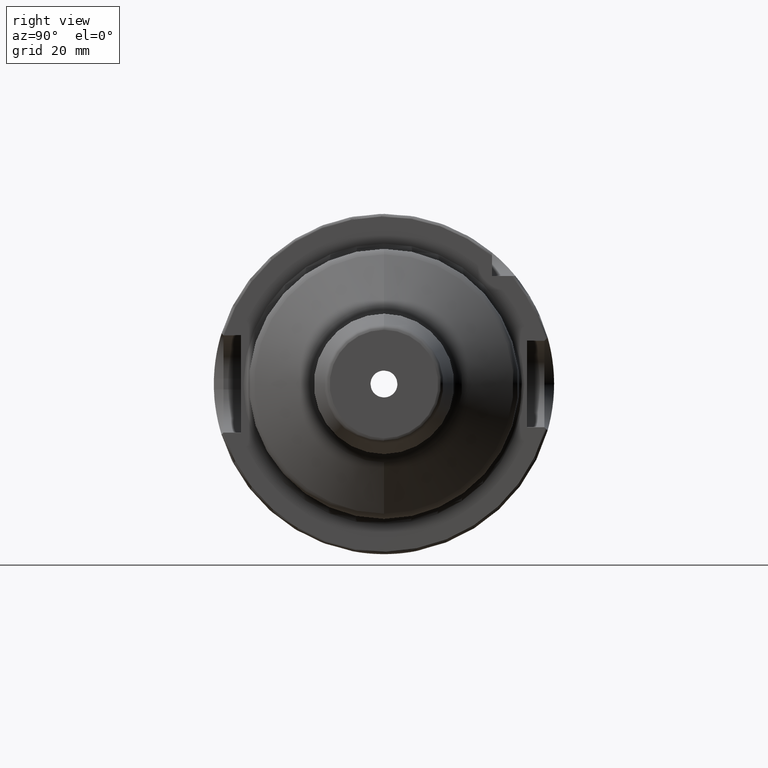
[diagram: clean part render]
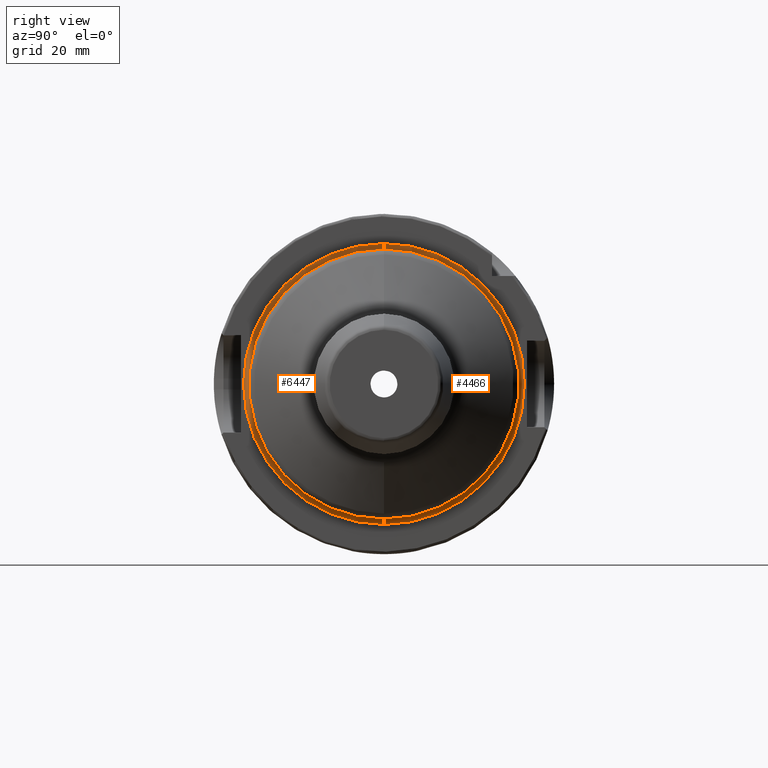
[diagram: same view with one multi-face feature highlighted, each face labeled with its STEP entity id]
A machine part, right view. The highlighted faces form ONE feature: a constant-radius fillet chain: 2 tangent blend faces with common blend radius 1 mm. The faces share edges in the B-rep.
Their STEP definitions:
[1] entity #6447 (Torus):
#1004=CARTESIAN_POINT('',(2.6E1,0.E0,0.E0));
#1005=DIRECTION('',(1.E0,0.E0,0.E0));
#1006=DIRECTION('',(0.E0,0.E0,1.E0));
#1007=AXIS2_PLACEMENT_3D('',#1004,#1005,#1006);
#2684=CARTESIAN_POINT('',(2.7E1,0.E0,2.6E1));
#2685=DIRECTION('',(0.E0,1.E0,0.E0));
#2686=DIRECTION('',(0.E0,0.E0,-1.E0));
#2687=AXIS2_PLACEMENT_3D('',#2684,#2685,#2686);
#2689=CARTESIAN_POINT('',(2.7E1,0.E0,0.E0));
#2690=DIRECTION('',(-1.E0,0.E0,0.E0));
#2691=DIRECTION('',(0.E0,0.E0,-1.E0));
#2692=AXIS2_PLACEMENT_3D('',#2689,#2690,#2691);
#2694=CARTESIAN_POINT('',(2.7E1,0.E0,-2.6E1));
#2695=DIRECTION('',(0.E0,-1.E0,0.E0));
#2696=DIRECTION('',(0.E0,0.E0,1.E0));
#2697=AXIS2_PLACEMENT_3D('',#2694,#2695,#2696);
#3190=CARTESIAN_POINT('',(2.7E1,0.E0,-2.5E1));
#3191=VERTEX_POINT('',#3190);
#3248=CARTESIAN_POINT('',(2.7E1,0.E0,2.5E1));
#3249=VERTEX_POINT('',#3248);
#3258=CARTESIAN_POINT('',(2.6E1,0.E0,-2.6E1));
#3259=CARTESIAN_POINT('',(2.6E1,0.E0,2.6E1));
#3260=VERTEX_POINT('',#3258);
#3261=VERTEX_POINT('',#3259);
#6436=CARTESIAN_POINT('',(2.7E1,0.E0,0.E0));
#6437=DIRECTION('',(1.E0,0.E0,0.E0));
#6438=DIRECTION('',(0.E0,0.E0,1.E0));
#6439=AXIS2_PLACEMENT_3D('',#6436,#6437,#6438);
#6440=TOROIDAL_SURFACE('',#6439,2.6E1,1.E0);
#6441=ORIENTED_EDGE('',*,*,#4501,.F.);
#6442=ORIENTED_EDGE('',*,*,#4462,.F.);
#6443=ORIENTED_EDGE('',*,*,#4431,.F.);
#6444=ORIENTED_EDGE('',*,*,#4459,.T.);
#6445=EDGE_LOOP('',(#6441,#6442,#6443,#6444));
#6446=FACE_OUTER_BOUND('',#6445,.F.);
#6447=ADVANCED_FACE('',(#6446),#6440,.F.);
#1008=CIRCLE('',#1007,2.6E1);
#2688=CIRCLE('',#2687,1.E0);
#2693=CIRCLE('',#2692,2.5E1);
#2698=CIRCLE('',#2697,1.E0);
#4431=EDGE_CURVE('',#3191,#3249,#2693,.T.);
#4459=EDGE_CURVE('',#3191,#3260,#2698,.T.);
#4462=EDGE_CURVE('',#3249,#3261,#2688,.T.);
#4501=EDGE_CURVE('',#3261,#3260,#1008,.T.);
[2] entity #4466 (Torus):
#954=CARTESIAN_POINT('',(2.7E1,0.E0,0.E0));
#955=DIRECTION('',(1.E0,0.E0,0.E0));
#956=DIRECTION('',(0.E0,0.E0,-1.E0));
#957=AXIS2_PLACEMENT_3D('',#954,#955,#956);
#999=CARTESIAN_POINT('',(2.6E1,0.E0,0.E0));
#1000=DIRECTION('',(1.E0,0.E0,0.E0));
#1001=DIRECTION('',(0.E0,0.E0,-1.E0));
#1002=AXIS2_PLACEMENT_3D('',#999,#1000,#1001);
#2684=CARTESIAN_POINT('',(2.7E1,0.E0,2.6E1));
#2685=DIRECTION('',(0.E0,1.E0,0.E0));
#2686=DIRECTION('',(0.E0,0.E0,-1.E0));
#2687=AXIS2_PLACEMENT_3D('',#2684,#2685,#2686);
#2694=CARTESIAN_POINT('',(2.7E1,0.E0,-2.6E1));
#2695=DIRECTION('',(0.E0,-1.E0,0.E0));
#2696=DIRECTION('',(0.E0,0.E0,1.E0));
#2697=AXIS2_PLACEMENT_3D('',#2694,#2695,#2696);
#3190=CARTESIAN_POINT('',(2.7E1,0.E0,-2.5E1));
#3191=VERTEX_POINT('',#3190);
#3248=CARTESIAN_POINT('',(2.7E1,0.E0,2.5E1));
#3249=VERTEX_POINT('',#3248);
#3258=CARTESIAN_POINT('',(2.6E1,0.E0,-2.6E1));
#3259=CARTESIAN_POINT('',(2.6E1,0.E0,2.6E1));
#3260=VERTEX_POINT('',#3258);
#3261=VERTEX_POINT('',#3259);
#4452=CARTESIAN_POINT('',(2.7E1,0.E0,0.E0));
#4453=DIRECTION('',(1.E0,0.E0,0.E0));
#4454=DIRECTION('',(0.E0,0.E0,1.E0));
#4455=AXIS2_PLACEMENT_3D('',#4452,#4453,#4454);
#4456=TOROIDAL_SURFACE('',#4455,2.6E1,1.E0);
#4458=ORIENTED_EDGE('',*,*,#4457,.F.);
#4460=ORIENTED_EDGE('',*,*,#4459,.F.);
#4461=ORIENTED_EDGE('',*,*,#4447,.T.);
#4463=ORIENTED_EDGE('',*,*,#4462,.T.);
#4464=EDGE_LOOP('',(#4458,#4460,#4461,#4463));
#4465=FACE_OUTER_BOUND('',#4464,.F.);
#4466=ADVANCED_FACE('',(#4465),#4456,.F.);
#958=CIRCLE('',#957,2.5E1);
#1003=CIRCLE('',#1002,2.6E1);
#2688=CIRCLE('',#2687,1.E0);
#2698=CIRCLE('',#2697,1.E0);
#4447=EDGE_CURVE('',#3191,#3249,#958,.T.);
#4457=EDGE_CURVE('',#3260,#3261,#1003,.T.);
#4459=EDGE_CURVE('',#3191,#3260,#2698,.T.);
#4462=EDGE_CURVE('',#3249,#3261,#2688,.T.);